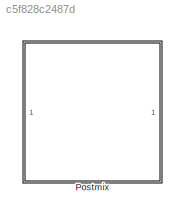
MODEL slx_c5f828c2487d
KIND library
CONFIG AbsTol = auto
CONFIG EnableMultiTasking = off
CONFIG FixedStep = auto
CONFIG MaxStep = auto
CONFIG MinStep = auto
CONFIG RelTol = 1e-3
CONFIG SampleTimeConstraint = Unconstrained
CONFIG SolverName = VariableStepAuto
CONFIG StartTime = 0.0
CONFIG StopTime = 10.0
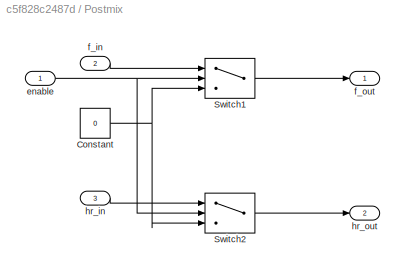
BLOCK [SubSystem] Postmix
BLOCK [Constant] Postmix/Constant
  OutDataTypeStr = single
  Value = 0
BLOCK [Switch] Postmix/Switch1
  Criteria = u2 ~= 0
  InputSameDT = off
  NameLocation = top
  SaturateOnIntegerOverflow = off
  Threshold = .5
  ZeroCross = off
BLOCK [Switch] Postmix/Switch2
  Criteria = u2 ~= 0
  InputSameDT = off
  NameLocation = top
  SaturateOnIntegerOverflow = off
  Threshold = .5
  ZeroCross = off
BLOCK [Inport] Postmix/enable
BLOCK [Inport] Postmix/f_in
  OutDataTypeStr = single
  Port = 2
BLOCK [Outport] Postmix/f_out
  VectorParamsAs1DForOutWhenUnconnected = off
BLOCK [Inport] Postmix/hr_in
  OutDataTypeStr = single
  Port = 3
BLOCK [Outport] Postmix/hr_out
  Port = 2
  VectorParamsAs1DForOutWhenUnconnected = off
NET Postmix/Constant:1 -> Postmix/Switch1:3, Postmix/Switch2:3
LINE Postmix/Switch1:1 -> Postmix/f_out:1
LINE Postmix/Switch2:1 -> Postmix/hr_out:1
NET Postmix/enable:1 -> Postmix/Switch1:2, Postmix/Switch2:2
LINE Postmix/f_in:1 -> Postmix/Switch1:1
LINE Postmix/hr_in:1 -> Postmix/Switch2:1
note: NET lines group one-source signal fan-out (src -> all destinations, sorted); 1:1 wires keep LINE
